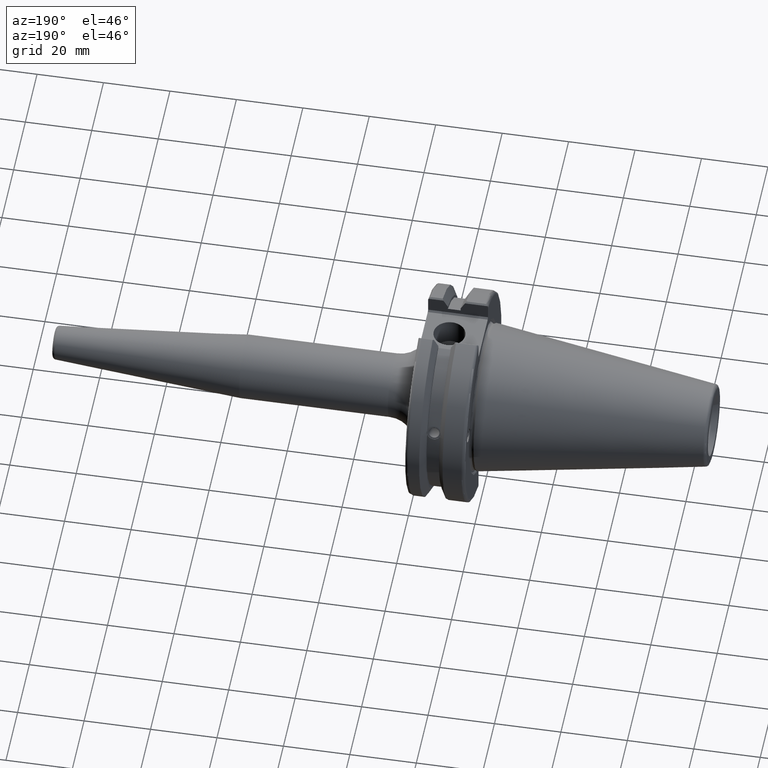
[diagram: clean part render]
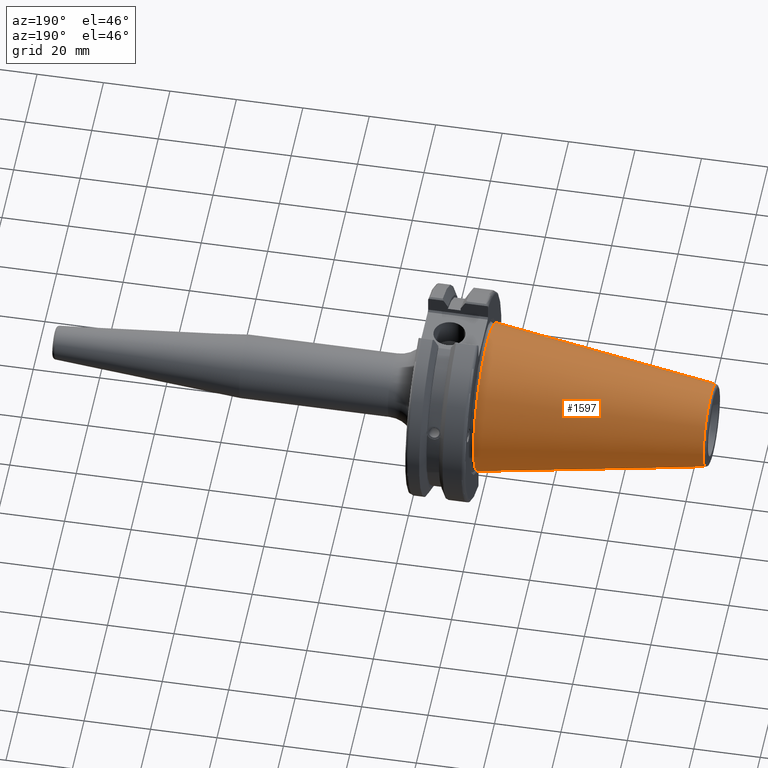
[diagram: same view with one face highlighted and labeled with its STEP entity id]
A machine part, auxiliary view. The second image highlights one B-rep face of the part: STEP entity #1597.
In plain terms, the highlighted conical surface has half-angle 8.297 deg.
Its self-contained STEP definition (entity closure, byte-faithful):
#93=CONICAL_SURFACE('',#1788,17.2484375,0.144812498238939);
#176=LINE('',#3011,#274);
#274=VECTOR('',#2191,17.2484375);
#432=FACE_OUTER_BOUND('',#533,.T.);
#533=EDGE_LOOP('',(#1378,#1379,#1380,#1381,#1382));
#624=CIRCLE('',#1782,12.3966635780937);
#625=CIRCLE('',#1783,12.3966635780937);
#629=CIRCLE('',#1789,22.225);
#784=VERTEX_POINT('',#2998);
#785=VERTEX_POINT('',#2999);
#788=VERTEX_POINT('',#3009);
#998=EDGE_CURVE('',#784,#785,#624,.T.);
#999=EDGE_CURVE('',#785,#784,#625,.T.);
#1003=EDGE_CURVE('',#788,#788,#629,.T.);
#1004=EDGE_CURVE('',#788,#785,#176,.T.);
#1378=ORIENTED_EDGE('',*,*,#1003,.F.);
#1379=ORIENTED_EDGE('',*,*,#1004,.T.);
#1380=ORIENTED_EDGE('',*,*,#998,.F.);
#1381=ORIENTED_EDGE('',*,*,#999,.F.);
#1382=ORIENTED_EDGE('',*,*,#1004,.F.);
#1597=ADVANCED_FACE('',(#432),#93,.T.);
#1782=AXIS2_PLACEMENT_3D('',#3000,#2175,#2176);
#1783=AXIS2_PLACEMENT_3D('',#3001,#2177,#2178);
#1788=AXIS2_PLACEMENT_3D('',#3008,#2187,#2188);
#1789=AXIS2_PLACEMENT_3D('',#3010,#2189,#2190);
#2175=DIRECTION('center_axis',(-1.,0.,0.));
#2176=DIRECTION('ref_axis',(0.,-1.,3.06161699786838E-17));
#2177=DIRECTION('center_axis',(-1.,0.,0.));
#2178=DIRECTION('ref_axis',(0.,-1.,3.06161699786838E-17));
#2187=DIRECTION('center_axis',(1.,0.,0.));
#2188=DIRECTION('ref_axis',(0.,1.,0.));
#2189=DIRECTION('center_axis',(1.,0.,0.));
#2190=DIRECTION('ref_axis',(0.,0.,-1.));
#2191=DIRECTION('',(-0.989532981063282,0.144306893071729,1.76724974695192E-17));
#2998=CARTESIAN_POINT('',(-67.3943068930717,-1.5181534371019E-15,12.3966635780937));
#2999=CARTESIAN_POINT('',(-67.3943068930718,-12.3966635780937,-1.5181534371019E-15));
#3000=CARTESIAN_POINT('Origin',(-67.3943068930717,0.,-1.89769179637738E-15));
#3001=CARTESIAN_POINT('Origin',(-67.3943068930717,0.,-1.89769179637738E-15));
#3008=CARTESIAN_POINT('Origin',(-34.125,0.,0.));
#3009=CARTESIAN_POINT('',(0.,-22.225,-2.72177751110499E-15));
#3010=CARTESIAN_POINT('Origin',(0.,0.,0.));
#3011=CARTESIAN_POINT('',(-34.125,-17.2484375,-2.11232437746682E-15));